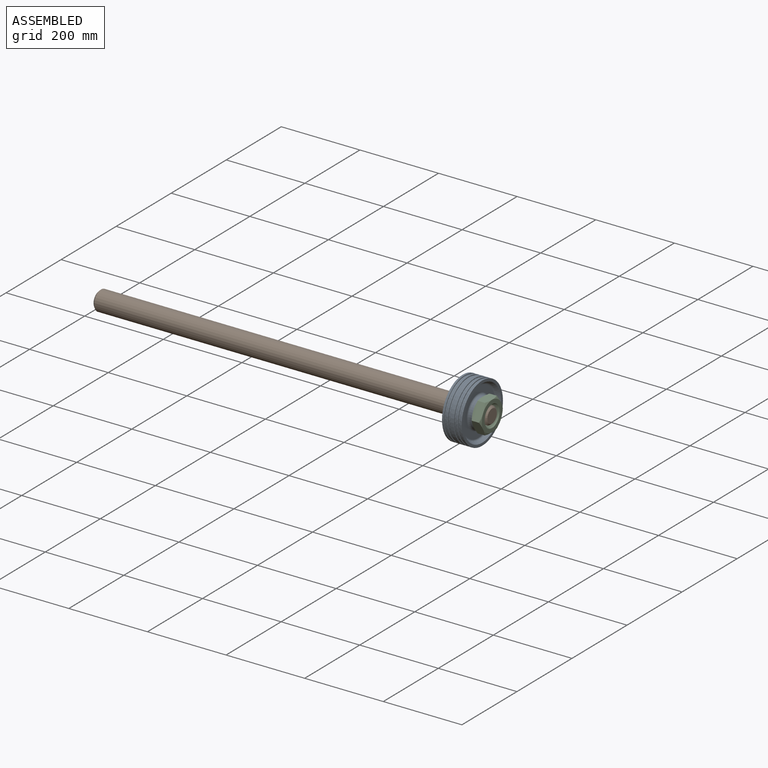
[diagram: assembled view]
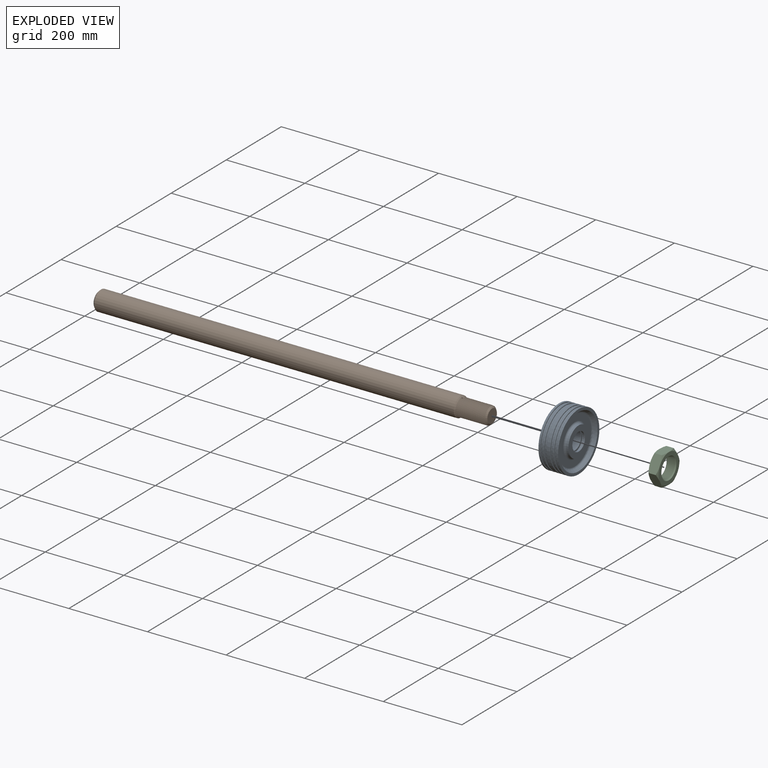
[diagram: exploded view]
GUIDED TOUR — MATED ASSEMBLY (Onshape document b8038d7cb586b76d78c2bccd, AutoMate assembly b8038d7cb586b76d78c2bccd_f214abcc5f0ec5113b00f8ec_2e50c7d6de517a258a1dc775_default)

This assembly has 3 components, labeled P0..P2 below (a component is one placed occurrence of a part; the same part can appear more than once), held together by 2 mates. A mate is a constraint between two components; its type names the relative motion it leaves free:
  FASTENED — locks the two components together rigidly (no relative motion).
Axis/direction vectors are unit vectors and 'through' points are millimeter coordinates, both in the assembly's world frame.

MATES
  1. FASTENED "Fastened 2": P2 <-> P1, direction (1.000, 0.000, 0.000) through (-110.56, -75.28, 26.12) mm
  2. FASTENED "Fastened 1": P1 <-> P0, direction (1.000, 0.000, 0.000) through (-110.56, -75.28, 26.12) mm

ASSEMBLY ORDER
  1. P1 — the base component [order heuristic]
  2. P0 — core [order heuristic]
  3. P2 [order verified]
Order-tag legend:
  [order verified] — this step's position reverses a verified removal order: the component was checked to insert without passing through the ones already placed.
  [order heuristic] — the first 2 components form the assembly's core: parts whose collision-free extraction could not be verified, listed in mate-graph order.

Of the 3 components, 1 carries the full construction recipe — the FeatureScript program that regenerates the part's solid from scratch; the rest are supplied as boundary geometry only.
Each toured component is shown spotlighted twice — in the assembled view, then in the exploded view, where a leader line traces a displaced component back to its assembled socket (saturated green if recipe-attached, orange if geometry-only; every other component desaturated gray) — followed by its recipe or geometry summary and the mates that hold it.
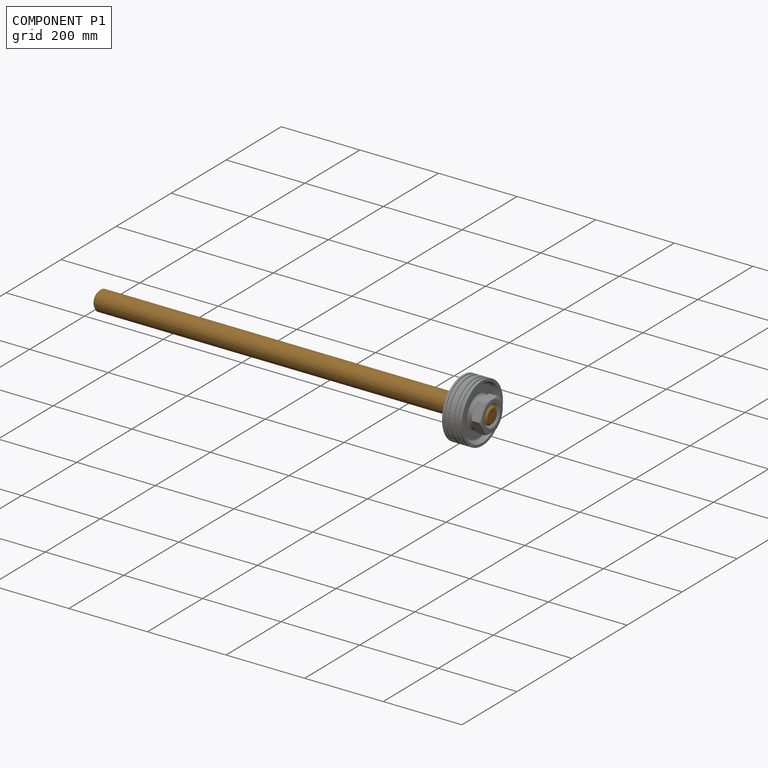
[diagram: component P1 — assembled]
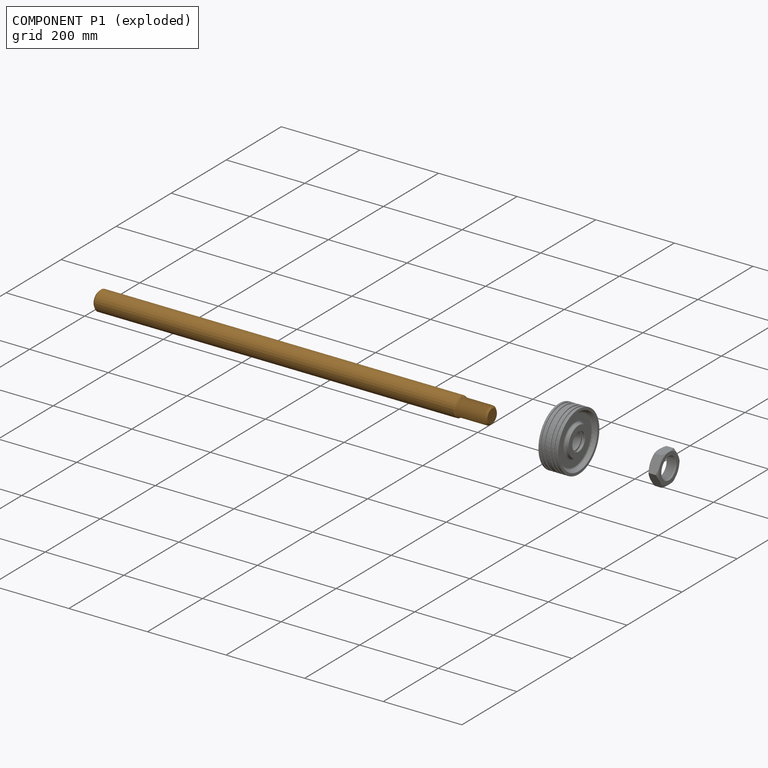
[diagram: component P1 — exploded]
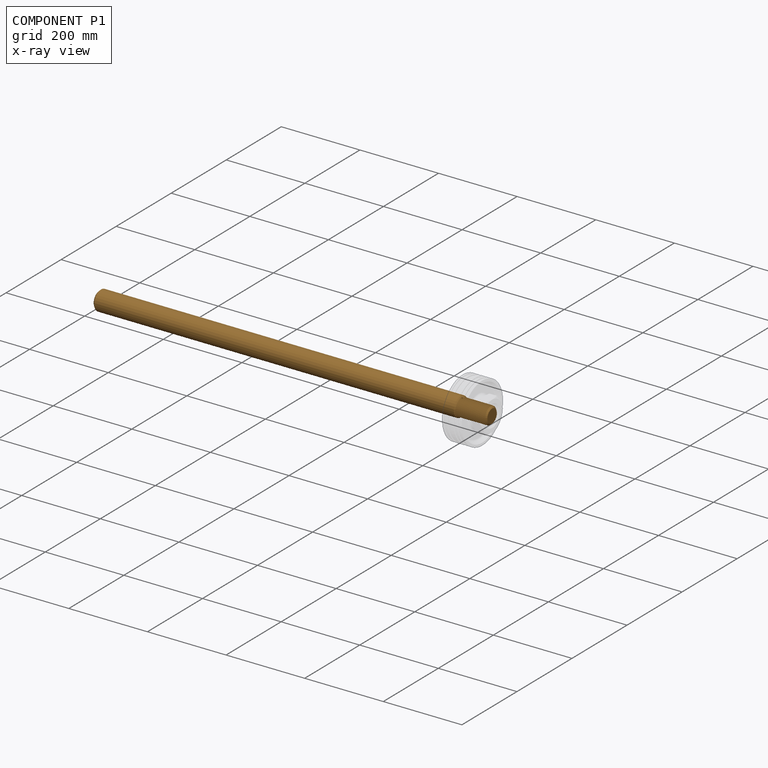
[diagram: component P1 — x-ray view]
COMPONENT P1 — geometry summary (no construction recipe available for this part):
  bounding box: 1001.3 x 51.8 x 50.0 mm
  B-rep topology: 1 solid, 14 faces, 60 edges
  volume: 1908789 mm^3 (74% of its bounding box)
  symmetry: revolution-symmetric about the x axis through its bounding-box center; mirror-symmetric across its y mid-plane, z mid-plane
Held by: FASTENED mate "Fastened 2" to P2; FASTENED mate "Fastened 1" to P0.
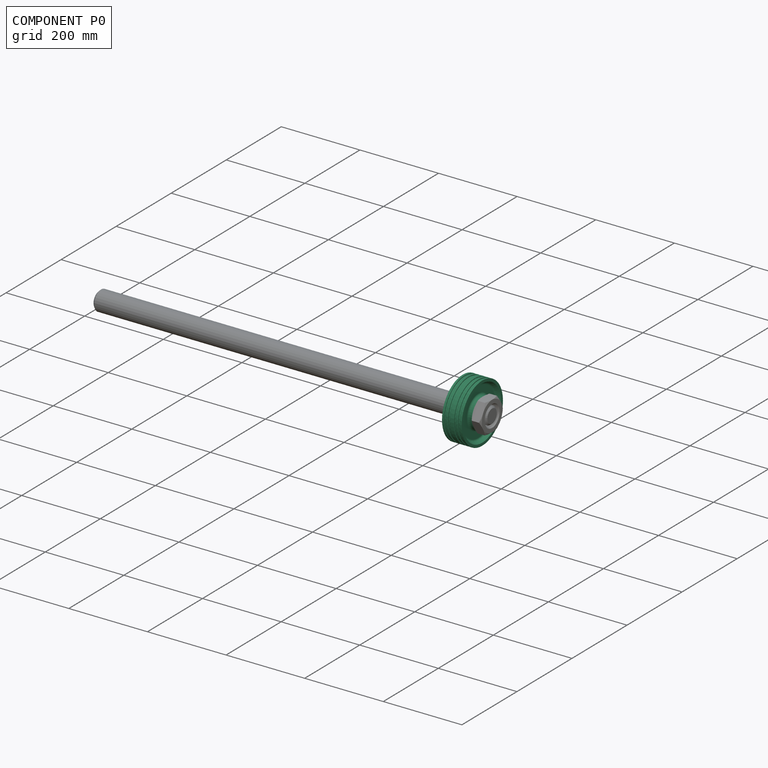
[diagram: component P0 — assembled]
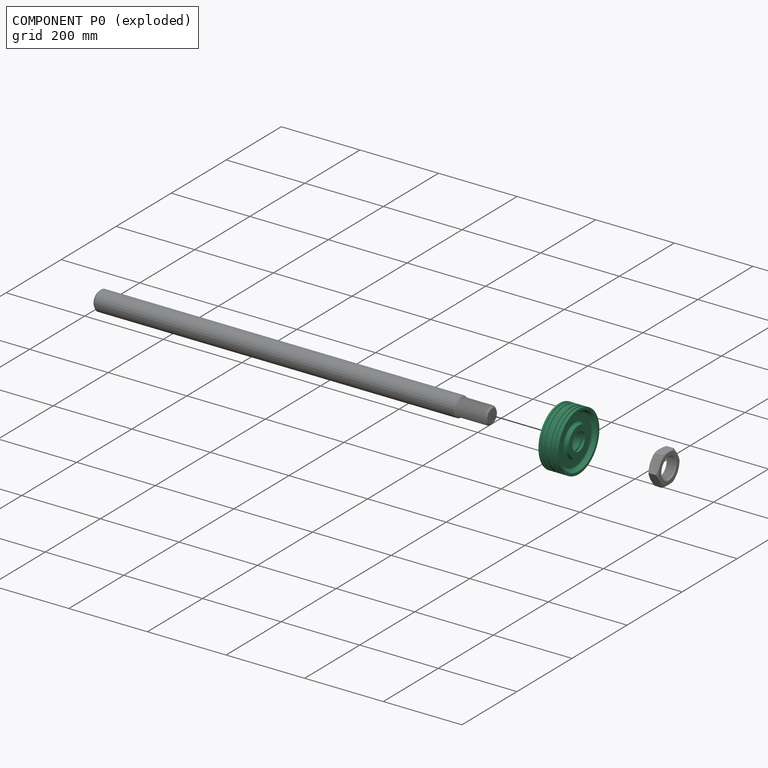
[diagram: component P0 — exploded]
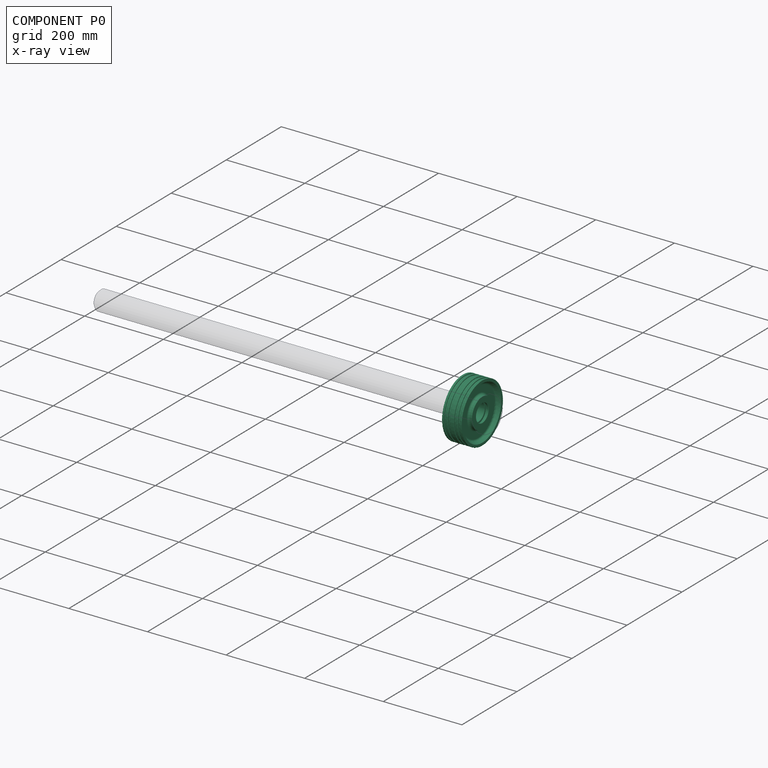
[diagram: component P0 — x-ray view]
COMPONENT P0 — recipe-attached (CADFS 00485507, mesh-verified: the recipe's output STEP matches this component's geometry to below the mesh-comparison resolution (tessellation chordal tolerance ~0.327 mm)).
Held by: FASTENED mate "Fastened 1" to P1.
Construction recipe (FeatureScript — the CAD program that rebuilds this solid; sketch coordinates are in the units given by the * unit suffixes, e.g. mm):

FeatureScript 1511;
import(path : "onshape/std/geometry.fs", version : "1511.0");
import(path : "onshape/std/common.fs", version : "1511.0");
const mm = millimeter;
const VERTEX = EntityType.VERTEX;
const EDGE = EntityType.EDGE;
const FACE = EntityType.FACE;
const BODY = EntityType.BODY;
function v(x, y){return vector(x, y);}
function OD(order){return orderDisambiguation(order);}
function OSD(set){return originalSetDisambiguation(set);}
function TD(topology){return topologyDisambiguation(topology);}
function TDD(query){return trueDependencyDisambiguation(query);}
function sQuery(a, b, c) {return sketchEntityQuery(a, b, c);}

annotation { "Feature Type Name" : "Feature", "Feature Type Description" : "" }
export const myFeature = defineFeature(function(context is Context, id is Id, definition is map)
    precondition{}
    {
        {
            var Q0;
            Q0=qCreatedBy(makeId("Front.planeOp"),FACE);
            var sketch = newSketch(context, id + "F0", { "sketchPlane" : qUnion([Q0])});
            skLineSegment(sketch, "E0", {"start": v(0, 0) * mm, "end": v(-116.65, 0) * mm, "construction": true});
            skLineSegment(sketch, "E1", {"start": v(0, 0) * mm, "end": v(0, 54.64) * mm, "construction": true});
            skLineSegment(sketch, "E2.top", {"start": v(0, 75) * mm, "end": v(-5.13, 75) * mm});
            skLineSegment(sketch, "E2.right", {"start": v(-25, 22.5) * mm, "end": v(-25, 37.5) * mm});
            skLineSegment(sketch, "E3", {"start": v(-25, 68.16) * mm, "end": v(-17.57, 63.87) * mm});
            skLineSegment(sketch, "E4", {"start": v(-15.07, 59.54) * mm, "end": v(-15.07, 42.5) * mm});
            skLineSegment(sketch, "E5", {"start": v(-20.07, 37.5) * mm, "end": v(-25, 37.5) * mm});
            skLineSegment(sketch, "E6", {"start": v(-25, 22.5) * mm, "end": v(-20, 22.5) * mm});
            skLineSegment(sketch, "E7.trimOffspring", {"start": v(-25, 68.16) * mm, "end": v(-25, 75) * mm});
            skPoint(sketch, "E8.visualSharp", {"position": v(-15.07, 37.5) * mm});
            skArc(sketch, "E8.filletArc", {"start": v(-20.07, 37.5) * mm, "mid": v(-16.53, 38.96) * mm, "end": v(-15.07, 42.5) * mm});
            skPoint(sketch, "E9.visualSharp", {"position": v(-15.07, 62.42) * mm});
            skArc(sketch, "E9.filletArc", {"start": v(-15.07, 59.54) * mm, "mid": v(-15.74, 62.04) * mm, "end": v(-17.57, 63.87) * mm});
            skLineSegment(sketch, "E10", {"start": v(-20, 22.5) * mm, "end": v(-20, 27.5) * mm});
            skLineSegment(sketch, "E11", {"start": v(-20, 27.5) * mm, "end": v(-15, 27.5) * mm});
            skLineSegment(sketch, "E12", {"start": v(-15, 27.5) * mm, "end": v(-15, 22.5) * mm});
            skLineSegment(sketch, "E13.trimOffspring", {"start": v(-15, 22.5) * mm, "end": v(0, 22.5) * mm});
            skLineSegment(sketch, "E14", {"start": v(-20.13, 75) * mm, "end": v(-20.13, 72.5) * mm});
            skLineSegment(sketch, "E15", {"start": v(-20.13, 72.5) * mm, "end": v(-15.13, 72.5) * mm});
            skLineSegment(sketch, "E16", {"start": v(-15.13, 72.5) * mm, "end": v(-15.13, 75) * mm});
            skLineSegment(sketch, "E17.1.0.0", {"start": v(-10.13, 72.5) * mm, "end": v(-5.13, 72.5) * mm});
            skLineSegment(sketch, "E17.1.0.1", {"start": v(-10.13, 75) * mm, "end": v(-10.13, 72.5) * mm});
            skLineSegment(sketch, "E17.1.0.2", {"start": v(-5.13, 72.5) * mm, "end": v(-5.13, 75) * mm});
            skLineSegment(sketch, "E17.direction1", {"start": v(-20.13, 72.5) * mm, "end": v(-15.13, 72.5) * mm, "construction": true});
            skLineSegment(sketch, "E18.trimOffspring", {"start": v(-20.13, 75) * mm, "end": v(-25, 75) * mm});
            skLineSegment(sketch, "E19.trimOffspring", {"start": v(-10.13, 75) * mm, "end": v(-15.13, 75) * mm});
            skLineSegment(sketch, "E20.MirrorCS", {"start": v(10.13, 75) * mm, "end": v(10.13, 72.5) * mm});
            skLineSegment(sketch, "E21.MirrorCS", {"start": v(20.13, 75) * mm, "end": v(20.13, 72.5) * mm});
            skLineSegment(sketch, "E22.MirrorCS", {"start": v(20.13, 72.5) * mm, "end": v(15.13, 72.5) * mm});
            skLineSegment(sketch, "E23.MirrorCS", {"start": v(20.13, 75) * mm, "end": v(25, 75) * mm});
            skLineSegment(sketch, "E24.MirrorCS", {"start": v(10.13, 72.5) * mm, "end": v(5.13, 72.5) * mm});
            skLineSegment(sketch, "E25.MirrorCS", {"start": v(20.13, 72.5) * mm, "end": v(15.13, 72.5) * mm, "construction": true});
            skLineSegment(sketch, "E26.MirrorCS", {"start": v(10.13, 75) * mm, "end": v(15.13, 75) * mm});
            skLineSegment(sketch, "E27.MirrorCS", {"start": v(15.13, 72.5) * mm, "end": v(15.13, 75) * mm});
            skLineSegment(sketch, "E28.MirrorCS", {"start": v(15, 27.5) * mm, "end": v(15, 22.5) * mm});
            skLineSegment(sketch, "E29.MirrorCS", {"start": v(0, 75) * mm, "end": v(5.13, 75) * mm});
            skLineSegment(sketch, "E30.MirrorCS", {"start": v(25, 68.16) * mm, "end": v(17.57, 63.87) * mm});
            skLineSegment(sketch, "E31.MirrorCS", {"start": v(25, 22.5) * mm, "end": v(20, 22.5) * mm});
            skArc(sketch, "E32.MirrorCS", {"start": v(15.07, 59.54) * mm, "mid": v(15.74, 62.04) * mm, "end": v(17.57, 63.87) * mm});
            skLineSegment(sketch, "E33.MirrorCS", {"start": v(20, 22.5) * mm, "end": v(20, 27.5) * mm});
            skLineSegment(sketch, "E34.MirrorCS", {"start": v(20, 27.5) * mm, "end": v(15, 27.5) * mm});
            skLineSegment(sketch, "E35.MirrorCS", {"start": v(5.13, 72.5) * mm, "end": v(5.13, 75) * mm});
            skLineSegment(sketch, "E36.MirrorCS", {"start": v(25, 22.5) * mm, "end": v(25, 37.5) * mm});
            skLineSegment(sketch, "E37.MirrorCS", {"start": v(20.07, 37.5) * mm, "end": v(25, 37.5) * mm});
            skLineSegment(sketch, "E38.MirrorCS", {"start": v(25, 68.16) * mm, "end": v(25, 75) * mm});
            skArc(sketch, "E39.MirrorCS", {"start": v(20.07, 37.5) * mm, "mid": v(16.53, 38.96) * mm, "end": v(15.07, 42.5) * mm});
            skLineSegment(sketch, "E40.MirrorCS", {"start": v(15, 22.5) * mm, "end": v(0, 22.5) * mm});
            skLineSegment(sketch, "E41.MirrorCS", {"start": v(15.07, 59.54) * mm, "end": v(15.07, 42.5) * mm});
            skPoint(sketch, "E42.MirrorP", {"position": v(15.07, 37.5) * mm});
            skPoint(sketch, "E43.MirrorP", {"position": v(15.07, 62.42) * mm});
            skSolve(sketch);
        }
        {
            var Q0;
            Q0 = qSketchRegion(id + "F0", true);
            var Q1;
            Q1=sQuery(id+"F0.wireOp",EDGE,"E0");
            revolve(context, id + "F1", {"entities" : qUnion([Q0]), "axis" : qUnion([Q1]), "revolveType" : RevolveType.FULL});
        }
        {
            var Q0;
            Q0=makeQuery(id+"F1.opRevolve","SWEPT_EDGE",EDGE,{"disambiguationData":[OSD([sQuery(id+"F0.wireOp",EDGE,"E12"),sQuery(id+"F0.wireOp",EDGE,"E13.trimOffspring")])]});
            var Q1;
            Q1=makeQuery(id+"F1.opRevolve","SWEPT_EDGE",EDGE,{"disambiguationData":[OSD([sQuery(id+"F0.wireOp",EDGE,"E31.MirrorCS"),sQuery(id+"F0.wireOp",EDGE,"E33.MirrorCS")])]});
            var Q2;
            Q2=makeQuery(id+"F1.opRevolve","SWEPT_EDGE",EDGE,{"disambiguationData":[OSD([sQuery(id+"F0.wireOp",EDGE,"E28.MirrorCS"),sQuery(id+"F0.wireOp",EDGE,"E40.MirrorCS")])]});
            var Q3;
            Q3=makeQuery(id+"F1.opRevolve","SWEPT_EDGE",EDGE,{"disambiguationData":[OSD([sQuery(id+"F0.wireOp",EDGE,"E6"),sQuery(id+"F0.wireOp",EDGE,"E10")])]});
            var Q4;
            Q4=makeQuery(id+"F1.opRevolve","SWEPT_EDGE",EDGE,{"disambiguationData":[OSD([sQuery(id+"F0.wireOp",EDGE,"E2.right"),sQuery(id+"F0.wireOp",EDGE,"E6")])]});
            var Q5;
            Q5=makeQuery(id+"F1.opRevolve","SWEPT_EDGE",EDGE,{"disambiguationData":[OSD([sQuery(id+"F0.wireOp",EDGE,"E31.MirrorCS"),sQuery(id+"F0.wireOp",EDGE,"E36.MirrorCS")])]});
            var Q6;
            Q6=makeQuery(id+"F1.opRevolve","SWEPT_EDGE",EDGE,{"disambiguationData":[OSD([sQuery(id+"F0.wireOp",EDGE,"E26.MirrorCS"),sQuery(id+"F0.wireOp",EDGE,"E27.MirrorCS")])]});
            var Q7;
            Q7=makeQuery(id+"F1.opRevolve","SWEPT_EDGE",EDGE,{"disambiguationData":[OSD([sQuery(id+"F0.wireOp",EDGE,"E29.MirrorCS"),sQuery(id+"F0.wireOp",EDGE,"E35.MirrorCS")])]});
            var Q8;
            Q8=makeQuery(id+"F1.opRevolve","SWEPT_EDGE",EDGE,{"disambiguationData":[OSD([sQuery(id+"F0.wireOp",EDGE,"E17.1.0.1"),sQuery(id+"F0.wireOp",EDGE,"E19.trimOffspring")])]});
            var Q9;
            Q9=makeQuery(id+"F1.opRevolve","SWEPT_EDGE",EDGE,{"disambiguationData":[OSD([sQuery(id+"F0.wireOp",EDGE,"E14"),sQuery(id+"F0.wireOp",EDGE,"E18.trimOffspring")])]});
            var Q10;
            Q10=makeQuery(id+"F1.opRevolve","SWEPT_EDGE",EDGE,{"disambiguationData":[OSD([sQuery(id+"F0.wireOp",EDGE,"E16"),sQuery(id+"F0.wireOp",EDGE,"E19.trimOffspring")])]});
            var Q11;
            Q11=makeQuery(id+"F1.opRevolve","SWEPT_EDGE",EDGE,{"disambiguationData":[OSD([sQuery(id+"F0.wireOp",EDGE,"E2.top"),sQuery(id+"F0.wireOp",EDGE,"E17.1.0.2")])]});
            var Q12;
            Q12=makeQuery(id+"F1.opRevolve","SWEPT_EDGE",EDGE,{"disambiguationData":[OSD([sQuery(id+"F0.wireOp",EDGE,"E20.MirrorCS"),sQuery(id+"F0.wireOp",EDGE,"E26.MirrorCS")])]});
            var Q13;
            Q13=makeQuery(id+"F1.opRevolve","SWEPT_EDGE",EDGE,{"disambiguationData":[OSD([sQuery(id+"F0.wireOp",EDGE,"E21.MirrorCS"),sQuery(id+"F0.wireOp",EDGE,"E23.MirrorCS")])]});
            chamfer(context, id + "F2", {"entities" : qUnion([Q0, Q1, Q2, Q3, Q4, Q5, Q6, Q7, Q8, Q9, Q10, Q11, Q12, Q13]), "width" : .5 * mm, "tangentPropagation" : true});
        }
    });
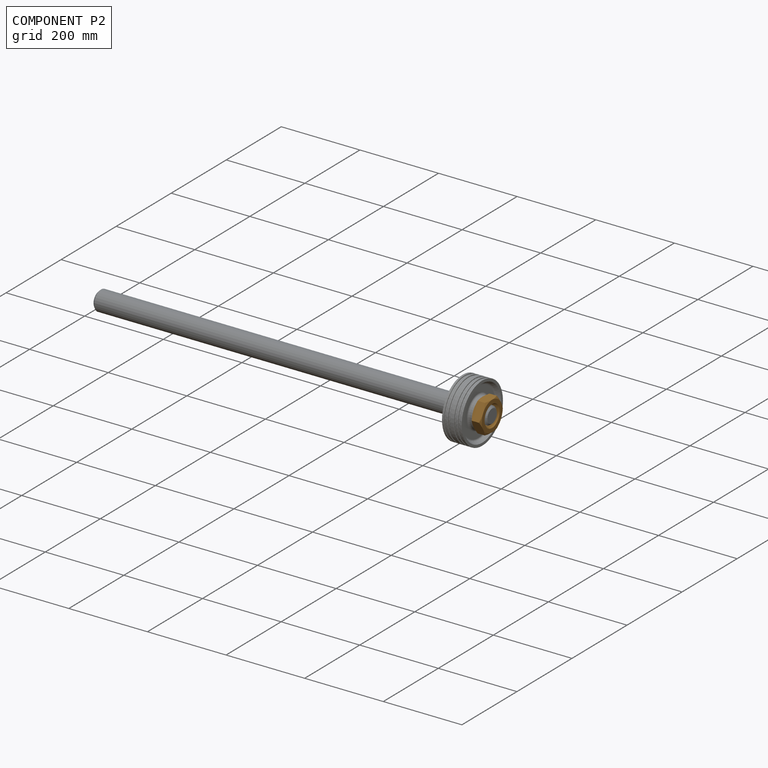
[diagram: component P2 — assembled]
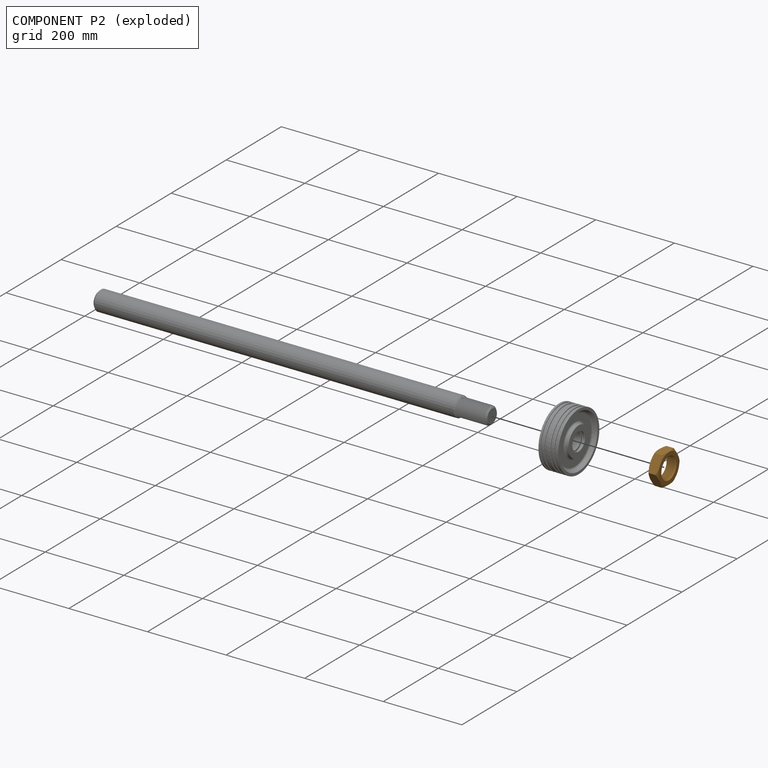
[diagram: component P2 — exploded]
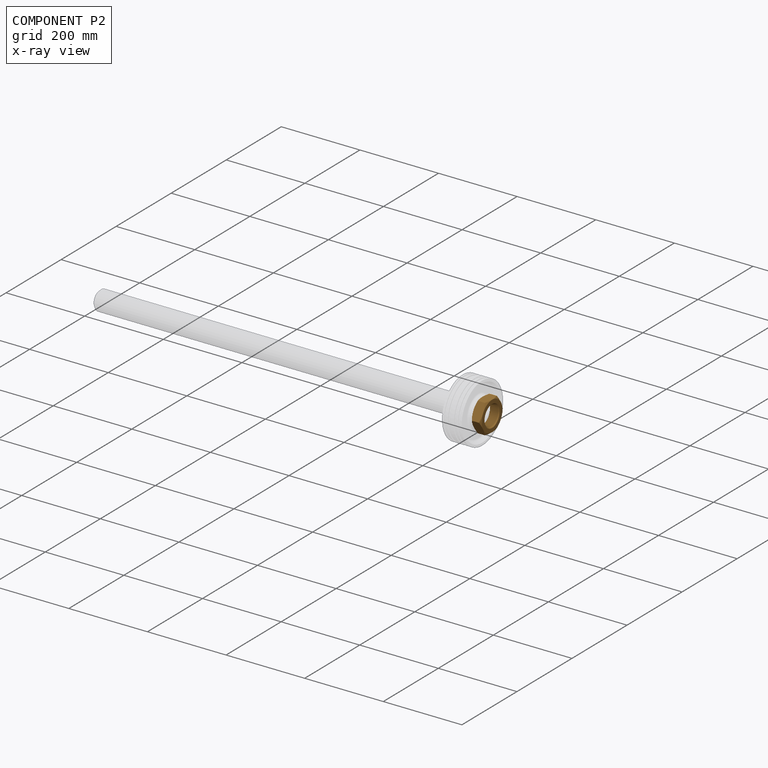
[diagram: component P2 — x-ray view]
COMPONENT P2 — geometry summary (no construction recipe available for this part):
  bounding box: 86.6 x 86.6 x 26.2 mm
  B-rep topology: 1 solid, 26 faces, 120 edges
  volume: 69097 mm^3 (35% of its bounding box)
  symmetry: 2-fold rotationally symmetric about the y axis
Held by: FASTENED mate "Fastened 2" to P1.
PROVENANCE & LICENSES
Assembly (occurrences, transforms, mates, per-part STEP geometry): AutoMate dataset, Zenodo record 7776208, CC0.
Construction recipes: CADFS (HuggingFace VladPyatov/CADFS, CC-BY-4.0, layered over the ABC dataset), FeatureScript reconstruction programs keyed by ABC model id.
Join: ABC meta listings map ABC model id -> Onshape documentId; within a shared document, parts are matched by geometric signature (bounding-box dims + volume at 0.1% relative tolerance, exact B-rep face/solid counts).
Verification: 1 of this assembly's 3 components carries a recipe attachment, and every attachment is mesh-verified: the CADFS STEP and the AutoMate member STEP were compared as meshes in their shared local frame (symmetric sampled-point-to-mesh distance); worst across the 1 attachment: below the mesh-comparison resolution (tessellation chordal tolerance ~0.327 mm) on a 218 mm part.
Renders: orthographic iso camera (az 35 / el 25); the floor grid conveys scale (grid pitch printed in each image; no ruler). In the exploded view each component is displaced by its stored offset vector: the offsets alone carry the explosion direction (mate normal/axis signs are not orientation cues and do not encode it), and separation distances are assigned per mate-chain, not proportionally to assembly-order depth.
